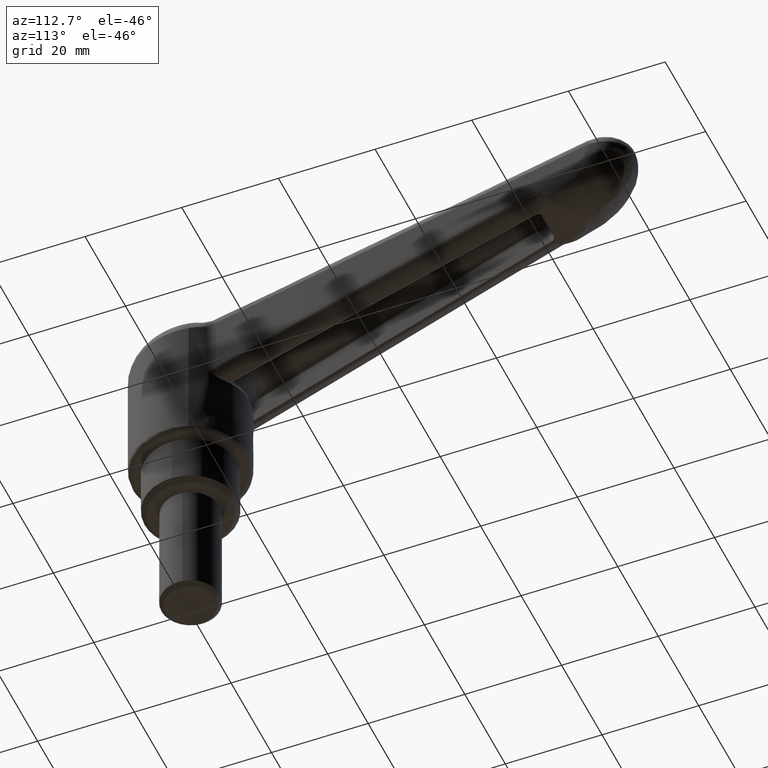
[diagram: clean part render]
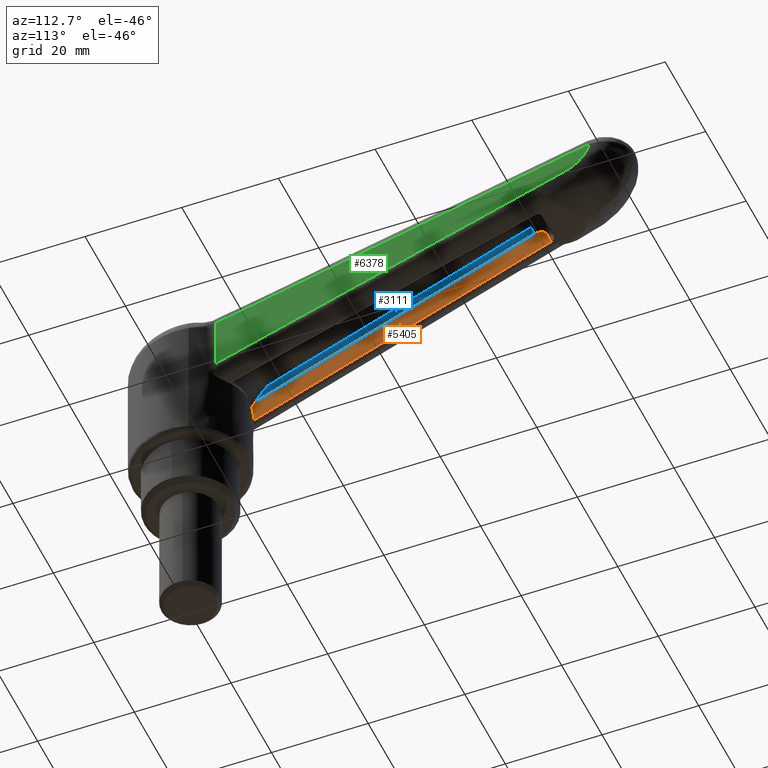
[diagram: same view with three faces highlighted in distinct colors, each labeled with its STEP entity id]
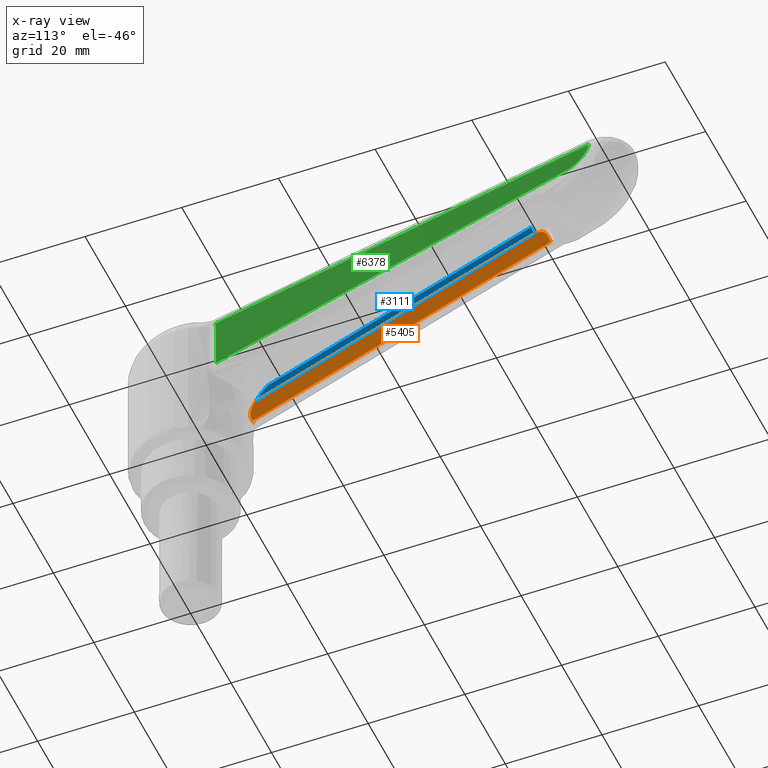
[diagram: x-ray of the same camera — body ghosted, the three highlighted faces saturated]
A machine part, auxiliary view with three faces highlighted in distinct colors.
The next image is the same camera in x-ray (body ghosted, the three faces saturated) — at least one of them is partly hidden behind the body in this view.
Their STEP definitions:

[orange] entity #5405 — the highlighted face is a freeform B-spline surface patch.
#2193=CARTESIAN_POINT('',(10.630725661781740,5.566657157031950,26.952557038581201));
#2194=VERTEX_POINT('',#2193);
#2218=CARTESIAN_POINT('',(10.628276401230419,5.571332043510680,26.415244969108102));
#2219=VERTEX_POINT('',#2218);
#2220=CARTESIAN_POINT('',(10.628276401230419,5.571332043510680,26.415244969108102));
#2221=CARTESIAN_POINT('',(10.629501545512944,5.568994869570138,26.683868251889290));
#2222=CARTESIAN_POINT('',(10.630725661781740,5.566657157031950,26.952557038581201));
#2230=(BOUNDED_CURVE()B_SPLINE_CURVE(2,(#2220,#2221,#2222),.UNSPECIFIED.,.F.,.U.)CURVE()GEOMETRIC_REPRESENTATION_ITEM()QUASI_UNIFORM_CURVE()RATIONAL_B_SPLINE_CURVE((1.0,0.999999977639520,1.0))REPRESENTATION_ITEM(''));
#2231=EDGE_CURVE('',#2219,#2194,#2230,.T.);
#3054=CARTESIAN_POINT('',(11.050157803588380,5.514330684559640,31.889686136176412));
#3055=VERTEX_POINT('',#3054);
#3082=CARTESIAN_POINT('',(69.494422689951293,3.951746085514970,53.161659791571203));
#3083=VERTEX_POINT('',#3082);
#3084=CARTESIAN_POINT('',(69.494422689951293,3.951746085514970,53.161659791571203));
#3085=CARTESIAN_POINT('',(11.050157803588380,5.514330684559640,31.889686136176412));
#3086=QUASI_UNIFORM_CURVE('',1,(#3084,#3085),.UNSPECIFIED.,.F.,.U.);
#3087=EDGE_CURVE('',#3083,#3055,#3086,.T.);
#3150=CARTESIAN_POINT('',(72.057848233944185,3.901498239541365,51.966314870469112));
#3151=VERTEX_POINT('',#3150);
#3183=CARTESIAN_POINT('',(72.057848233944128,3.901498239541380,51.966314870469112));
#3184=CARTESIAN_POINT('',(71.373807922498699,3.901498239541380,53.845700103016618));
#3185=CARTESIAN_POINT('',(69.494422689951278,3.951746085514983,53.161659791571253));
#3193=(BOUNDED_CURVE()B_SPLINE_CURVE(2,(#3183,#3184,#3185),.UNSPECIFIED.,.F.,.U.)CURVE()GEOMETRIC_REPRESENTATION_ITEM()QUASI_UNIFORM_CURVE()RATIONAL_B_SPLINE_CURVE((1.0,0.707106781186515,1.0))REPRESENTATION_ITEM(''));
#3194=EDGE_CURVE('',#3151,#3083,#3193,.T.);
#3213=CARTESIAN_POINT('',(72.912320775326208,3.901498239541365,49.618670953844401));
#3214=VERTEX_POINT('',#3213);
#3236=CARTESIAN_POINT('',(72.912320775326208,3.901498239541365,49.618670953844401));
#3237=CARTESIAN_POINT('',(72.057848233944185,3.901498239541365,51.966314870469112));
#3238=QUASI_UNIFORM_CURVE('',1,(#3236,#3237),.UNSPECIFIED.,.F.,.U.);
#3239=EDGE_CURVE('',#3214,#3151,#3238,.T.);
#3849=CARTESIAN_POINT('',(10.630725661781740,5.566657157031950,26.952557038581190));
#3850=CARTESIAN_POINT('',(12.138126107745419,5.526355456758203,27.501131333064940));
#3851=CARTESIAN_POINT('',(13.645526243128140,5.486053756483454,28.049706480979559));
#3852=CARTESIAN_POINT('',(15.152926068005950,5.445752056207740,28.598282482111600));
#3853=CARTESIAN_POINT('',(21.415664350471189,5.278312073132506,30.877430898099931));
#3854=CARTESIAN_POINT('',(27.678397273310988,5.110872090040060,33.156594041541197));
#3855=CARTESIAN_POINT('',(33.941124841600463,4.943432106933179,35.435771898167197));
#3856=CARTESIAN_POINT('',(46.931546510794668,4.596120817862493,40.163341650135287));
#3857=CARTESIAN_POINT('',(59.921945143058437,4.248809528723623,44.890974703481021));
#3858=CARTESIAN_POINT('',(72.912320775326194,3.901498239541361,49.618670953844493));
#3859=B_SPLINE_CURVE_WITH_KNOTS('',3,(#3849,#3850,#3851,#3852,#3853,#3854,#3855,#3856,#3857,#3858),.UNSPECIFIED.,.F.,.U.,(4,3,3,4),(0.000186131826386,0.005000000000001,0.025000000000108,0.066484869101438),.UNSPECIFIED.);
#3860=EDGE_CURVE('',#2194,#3214,#3859,.T.);
#4591=CARTESIAN_POINT('',(10.286256245507779,5.571332043510680,27.354937585381752));
#4592=VERTEX_POINT('',#4591);
#4606=CARTESIAN_POINT('',(11.050157803588389,5.514330684559630,31.889686136176401));
#4607=CARTESIAN_POINT('',(10.991719119508200,5.516402375422817,31.809151430714898));
#4608=CARTESIAN_POINT('',(10.935239116198940,5.518442446111495,31.726915101855180));
#4609=CARTESIAN_POINT('',(10.826314485521721,5.522457441961625,31.558936671156118));
#4610=CARTESIAN_POINT('',(10.773725665973300,5.524438072111651,31.472926814254130));
#4611=CARTESIAN_POINT('',(10.623864922404140,5.530215604480920,31.212303693180811));
#4612=CARTESIAN_POINT('',(10.534121928244341,5.533860466870489,31.034698547190882));
#4613=CARTESIAN_POINT('',(10.374988206594431,5.540736052991452,30.671766378599710));
#4614=CARTESIAN_POINT('',(10.305594377743381,5.543966839830978,30.486440532689318));
#4615=CARTESIAN_POINT('',(10.188103431112181,5.549995056798985,30.107708631534400));
#4616=CARTESIAN_POINT('',(10.139995803501360,5.552792700787044,29.914306563836611));
#4617=CARTESIAN_POINT('',(10.094455884738300,5.555992776832049,29.667016619477330));
#4618=CARTESIAN_POINT('',(10.086084991262959,5.556617787891633,29.617279604316671));
#4619=CARTESIAN_POINT('',(10.070961081738661,5.557827650827305,29.518034029859120));
#4620=CARTESIAN_POINT('',(10.050645609829200,5.559586073879352,29.369213302338590));
#4621=CARTESIAN_POINT('',(10.037420190514890,5.561175885248975,29.220535052807961));
#4622=CARTESIAN_POINT('',(10.020460099519370,5.564129804313333,28.923369274848859));
#4623=CARTESIAN_POINT('',(10.021773950858710,5.565798948115948,28.725512372759692));
#4624=CARTESIAN_POINT('',(10.050642021252189,5.568513201909240,28.330325881291060));
#4625=CARTESIAN_POINT('',(10.078188214682831,5.569558502760819,28.132996130632851));
#4626=CARTESIAN_POINT('',(10.140812752185971,5.570619784510264,27.837429643756920));
#4627=CARTESIAN_POINT('',(10.165189081919410,5.570887034069736,27.739354981002212));
#4628=CARTESIAN_POINT('',(10.220624394691139,5.571242722957877,27.545654313002881));
#4629=CARTESIAN_POINT('',(10.251730731732760,5.571332043510680,27.449795650979929));
#4630=CARTESIAN_POINT('',(10.286256245507779,5.571332043510680,27.354937585381752));
#4631=B_SPLINE_CURVE_WITH_KNOTS('',3,(#4606,#4607,#4608,#4609,#4610,#4611,#4612,#4613,#4614,#4615,#4616,#4617,#4618,#4619,#4620,#4621,#4622,#4623,#4624,#4625,#4626,#4627,#4628,#4629,#4630),.UNSPECIFIED.,.F.,.U.,(4,2,2,2,2,2,2,1,2,2,2,2,4),(0.0,0.062500000000001,0.125000000000003,0.250000000000006,0.375000000000010,0.500000000000013,0.531250000000013,0.562500000000013,0.625000000000010,0.750000000000007,0.875000000000005,0.937500000000002,1.0),.UNSPECIFIED.);
#4632=EDGE_CURVE('',#3055,#4592,#4631,.T.);
#5346=CARTESIAN_POINT('',(10.286256245507779,5.571332043510680,27.354937585381752));
#5347=CARTESIAN_POINT('',(10.628276401230419,5.571332043510680,26.415244969108102));
#5348=QUASI_UNIFORM_CURVE('',1,(#5346,#5347),.UNSPECIFIED.,.F.,.U.);
#5349=EDGE_CURVE('',#4592,#2219,#5348,.T.);
#5391=CARTESIAN_POINT('',(76.058748843737746,4.038130995141536,25.073252122718760));
#5392=CARTESIAN_POINT('',(6.883972070022005,5.671262038560603,25.073252122718760));
#5393=CARTESIAN_POINT('',(76.052757305146073,3.784346495556628,54.623963229998061));
#5394=CARTESIAN_POINT('',(6.877980531430324,5.417477538975697,54.623963229998061));
#5395=B_SPLINE_SURFACE_WITH_KNOTS('',1,1,((#5391,#5393),(#5392,#5394)),.UNSPECIFIED.,.F.,.F.,.U.,(2,2),(2,2),(0.0,69.194052191632650),(0.0,29.551801458060801),.UNSPECIFIED.);
#5396=ORIENTED_EDGE('',*,*,#3194,.T.);
#5397=ORIENTED_EDGE('',*,*,#3087,.T.);
#5398=ORIENTED_EDGE('',*,*,#4632,.T.);
#5399=ORIENTED_EDGE('',*,*,#5349,.T.);
#5400=ORIENTED_EDGE('',*,*,#2231,.T.);
#5401=ORIENTED_EDGE('',*,*,#3860,.T.);
#5402=ORIENTED_EDGE('',*,*,#3239,.T.);
#5403=EDGE_LOOP('',(#5396,#5397,#5398,#5399,#5400,#5401,#5402));
#5404=FACE_OUTER_BOUND('',#5403,.T.);
#5405=ADVANCED_FACE('',(#5404),#5395,.F.);

[blue] entity #3111 — the highlighted face is a freeform B-spline surface patch.
#3040=CARTESIAN_POINT('',(70.964474268465082,3.912338903613545,53.668857904275058));
#3041=CARTESIAN_POINT('',(9.561468472225753,5.554029347984856,31.319990582587621));
#3042=CARTESIAN_POINT('',(70.592026890083361,3.940897018150602,54.694246430121098));
#3043=CARTESIAN_POINT('',(9.189021093844001,5.582587462521897,32.345379108433647));
#3044=CARTESIAN_POINT('',(70.589104949578484,2.851967645579116,54.622284437925323));
#3045=CARTESIAN_POINT('',(9.186099153339116,4.493658089950404,32.273417116237852));
#3053=(BOUNDED_SURFACE()B_SPLINE_SURFACE(1,2,((#3040,#3042,#3044),(#3041,#3043,#3045)),.UNSPECIFIED.,.F.,.F.,.U.)B_SPLINE_SURFACE_WITH_KNOTS((2,2),(3,3),(0.0,65.364333844157983),(0.0,1.0),.UNSPECIFIED.)GEOMETRIC_REPRESENTATION_ITEM()RATIONAL_B_SPLINE_SURFACE(((1.0,0.675590207615660,1.0),(1.0,0.675590207615660,1.0)))REPRESENTATION_ITEM('')SURFACE());
#3054=CARTESIAN_POINT('',(11.050157803588380,5.514330684559640,31.889686136176412));
#3055=VERTEX_POINT('',#3054);
#3056=CARTESIAN_POINT('',(14.073639295410221,4.424033997806915,34.054321225824602));
#3057=VERTEX_POINT('',#3056);
#3058=CARTESIAN_POINT('',(11.050157803588380,5.514330684559640,31.889686136176412));
#3059=CARTESIAN_POINT('',(11.147796437983260,5.510869328953130,32.024242531266012));
#3060=CARTESIAN_POINT('',(11.252082442110931,5.494829136385318,32.150438654111298));
#3061=CARTESIAN_POINT('',(11.470391468260789,5.448131882506268,32.391297806325291));
#3062=CARTESIAN_POINT('',(11.584481798969270,5.417244465885960,32.505856903232328));
#3063=CARTESIAN_POINT('',(11.761886702112420,5.363017849880898,32.670553483479793));
#3064=CARTESIAN_POINT('',(11.821821347803670,5.343676983438054,32.724007210783853));
#3065=CARTESIAN_POINT('',(11.942703232625011,5.303030793844325,32.827890790833308));
#3066=CARTESIAN_POINT('',(12.003730814322770,5.281699562513897,32.878394015844300));
#3067=CARTESIAN_POINT('',(12.188501636339669,5.215135793457138,33.025954032495633));
#3068=CARTESIAN_POINT('',(12.313925727941390,5.167353541232676,33.119083442713247));
#3069=CARTESIAN_POINT('',(12.696685620775060,5.016288864073278,33.384531472863493));
#3070=CARTESIAN_POINT('',(12.960428510009001,4.905372110197853,33.543075923803890));
#3071=CARTESIAN_POINT('',(13.369738931785580,4.729644168253148,33.755446003490768));
#3072=CARTESIAN_POINT('',(13.508398388655349,4.669509338054818,33.821874647656649));
#3073=CARTESIAN_POINT('',(13.718457471363600,4.578231882128990,33.914317064252067));
#3074=CARTESIAN_POINT('',(13.824104823296230,4.532280996246117,33.958787494216402));
#3075=CARTESIAN_POINT('',(13.930732206842739,4.485975800416473,34.000622722281392));
#3076=CARTESIAN_POINT('',(14.002041845152860,4.455039706148301,34.027924043334082));
#3077=CARTESIAN_POINT('',(14.037904646191061,4.439494502571352,34.041314876642907));
#3078=CARTESIAN_POINT('',(14.073639295410221,4.424033997806915,34.054321225824602));
#3079=B_SPLINE_CURVE_WITH_KNOTS('',3,(#3058,#3059,#3060,#3061,#3062,#3063,#3064,#3065,#3066,#3067,#3068,#3069,#3070,#3071,#3072,#3073,#3074,#3075,#3076,#3077,#3078),.UNSPECIFIED.,.F.,.U.,(4,2,2,2,2,2,2,2,1,2,4),(0.0,0.125000000000004,0.250000000000007,0.312500000000007,0.375000000000007,0.500000000000006,0.750000000000006,0.875000000000004,0.937500000000004,0.968750000000002,1.0),.UNSPECIFIED.);
#3080=EDGE_CURVE('',#3055,#3057,#3079,.T.);
#3081=ORIENTED_EDGE('',*,*,#3080,.F.);
#3082=CARTESIAN_POINT('',(69.494422689951293,3.951746085514970,53.161659791571203));
#3083=VERTEX_POINT('',#3082);
#3084=CARTESIAN_POINT('',(69.494422689951293,3.951746085514970,53.161659791571203));
#3085=CARTESIAN_POINT('',(11.050157803588380,5.514330684559640,31.889686136176412));
#3086=QUASI_UNIFORM_CURVE('',1,(#3084,#3085),.UNSPECIFIED.,.F.,.U.);
#3087=EDGE_CURVE('',#3083,#3055,#3086,.T.);
#3088=ORIENTED_EDGE('',*,*,#3087,.F.);
#3089=CARTESIAN_POINT('',(69.128801216842504,2.952061541936170,54.092762230474293));
#3090=VERTEX_POINT('',#3089);
#3091=CARTESIAN_POINT('',(69.494422689951236,3.951746085514971,53.161659791571203));
#3092=CARTESIAN_POINT('',(69.152402534228543,3.951746085514972,54.101352407844949));
#3093=CARTESIAN_POINT('',(69.128801216842504,2.952061541936155,54.092762230474356));
#3101=(BOUNDED_CURVE()B_SPLINE_CURVE(2,(#3091,#3092,#3093),.UNSPECIFIED.,.F.,.U.)CURVE()GEOMETRIC_REPRESENTATION_ITEM()QUASI_UNIFORM_CURVE()RATIONAL_B_SPLINE_CURVE((1.0,0.707106781186548,1.0))REPRESENTATION_ITEM(''));
#3102=EDGE_CURVE('',#3083,#3090,#3101,.T.);
#3103=ORIENTED_EDGE('',*,*,#3102,.T.);
#3104=CARTESIAN_POINT('',(14.073639295410221,4.424033997806915,34.054321225824602));
#3105=CARTESIAN_POINT('',(69.128801216842504,2.952061541936170,54.092762230474293));
#3106=QUASI_UNIFORM_CURVE('',1,(#3104,#3105),.UNSPECIFIED.,.F.,.U.);
#3107=EDGE_CURVE('',#3057,#3090,#3106,.T.);
#3108=ORIENTED_EDGE('',*,*,#3107,.F.);
#3109=EDGE_LOOP('',(#3081,#3088,#3103,#3108));
#3110=FACE_OUTER_BOUND('',#3109,.T.);
#3111=ADVANCED_FACE('',(#3110),#3053,.F.);

[green] entity #6378 — the highlighted face is a freeform B-spline surface patch.
#5055=CARTESIAN_POINT('',(8.841669019642412,-8.976546322690471,40.397985290362151));
#5056=VERTEX_POINT('',#5055);
#5197=CARTESIAN_POINT('',(8.958806641274091,-8.973509853765771,39.498216051846100));
#5198=VERTEX_POINT('',#5197);
#5212=CARTESIAN_POINT('',(8.841669019642412,-8.976546322690471,40.397985290362151));
#5213=CARTESIAN_POINT('',(8.920304614572336,-8.974507912339861,40.103219713197440));
#5214=CARTESIAN_POINT('',(8.958806641274091,-8.973509853765771,39.803225784668513));
#5215=CARTESIAN_POINT('',(8.958806641274091,-8.973509853765771,39.498216051846100));
#5216=QUASI_UNIFORM_CURVE('',3,(#5212,#5213,#5214,#5215),.UNSPECIFIED.,.F.,.U.);
#5217=EDGE_CURVE('',#5056,#5198,#5216,.T.);
#5244=CARTESIAN_POINT('',(8.958806641274080,-8.973509853765771,29.466439365079001));
#5245=VERTEX_POINT('',#5244);
#5259=CARTESIAN_POINT('',(8.958806641274091,-8.973509853765771,39.498216051846100));
#5260=CARTESIAN_POINT('',(8.958806641274080,-8.973509853765771,29.466439365079001));
#5261=QUASI_UNIFORM_CURVE('',1,(#5259,#5260),.UNSPECIFIED.,.F.,.U.);
#5262=EDGE_CURVE('',#5198,#5245,#5261,.T.);
#5491=CARTESIAN_POINT('',(81.389620479773200,-7.095941295112780,55.828869491423298));
#5492=VERTEX_POINT('',#5491);
#5639=CARTESIAN_POINT('',(85.181394708208785,-6.997650033486260,60.297485300990608));
#5640=VERTEX_POINT('',#5639);
#5654=CARTESIAN_POINT('',(81.389620479773214,-7.095941295112737,55.828869491423298));
#5655=CARTESIAN_POINT('',(84.165023899907837,-7.023996636160791,57.316877556528581));
#5656=CARTESIAN_POINT('',(85.181394708208785,-6.997650033486222,60.297485300990623));
#5664=(BOUNDED_CURVE()B_SPLINE_CURVE(2,(#5654,#5655,#5656),.UNSPECIFIED.,.F.,.U.)CURVE()GEOMETRIC_REPRESENTATION_ITEM()QUASI_UNIFORM_CURVE()RATIONAL_B_SPLINE_CURVE((1.0,0.930502890215523,1.0))REPRESENTATION_ITEM(''));
#5665=EDGE_CURVE('',#5492,#5640,#5664,.T.);
#5889=CARTESIAN_POINT('',(8.958806641274080,-8.973509853765771,29.466439365079001));
#5890=CARTESIAN_POINT('',(81.389620479773200,-7.095941295112780,55.828869491423298));
#5891=QUASI_UNIFORM_CURVE('',1,(#5889,#5890),.UNSPECIFIED.,.F.,.U.);
#5892=EDGE_CURVE('',#5245,#5492,#5891,.T.);
#5919=CARTESIAN_POINT('',(85.181394708208785,-6.997650033486260,60.950987970878998));
#5920=VERTEX_POINT('',#5919);
#5921=CARTESIAN_POINT('',(85.181394708208785,-6.997650033486260,60.950987970878998));
#5922=CARTESIAN_POINT('',(8.841669019642412,-8.976546322690471,40.397985290362151));
#5923=QUASI_UNIFORM_CURVE('',1,(#5921,#5922),.UNSPECIFIED.,.F.,.U.);
#5924=EDGE_CURVE('',#5920,#5056,#5923,.T.);
#6325=CARTESIAN_POINT('',(85.181394708208785,-6.997650033486260,60.297485300990608));
#6326=CARTESIAN_POINT('',(85.181394708208785,-6.997650033486260,60.950987970878998));
#6327=QUASI_UNIFORM_CURVE('',1,(#6325,#6326),.UNSPECIFIED.,.F.,.U.);
#6328=EDGE_CURVE('',#5640,#5920,#6327,.T.);
#6365=CARTESIAN_POINT('',(5.028499869459716,-9.075392188500738,62.523641886893863));
#6366=CARTESIAN_POINT('',(88.994565905982498,-6.898804114597866,62.523641886893863));
#6367=CARTESIAN_POINT('',(5.028499869459716,-9.075392188500738,27.893787701014539));
#6368=CARTESIAN_POINT('',(88.994565905982498,-6.898804114597866,27.893787701014539));
#6369=B_SPLINE_SURFACE_WITH_KNOTS('',1,1,((#6365,#6367),(#6366,#6368)),.UNSPECIFIED.,.F.,.F.,.U.,(2,2),(2,2),(0.0,83.994272312421160),(0.0,34.629854185879317),.UNSPECIFIED.);
#6370=ORIENTED_EDGE('',*,*,#5924,.T.);
#6371=ORIENTED_EDGE('',*,*,#5217,.T.);
#6372=ORIENTED_EDGE('',*,*,#5262,.T.);
#6373=ORIENTED_EDGE('',*,*,#5892,.T.);
#6374=ORIENTED_EDGE('',*,*,#5665,.T.);
#6375=ORIENTED_EDGE('',*,*,#6328,.T.);
#6376=EDGE_LOOP('',(#6370,#6371,#6372,#6373,#6374,#6375));
#6377=FACE_OUTER_BOUND('',#6376,.T.);
#6378=ADVANCED_FACE('',(#6377),#6369,.F.);